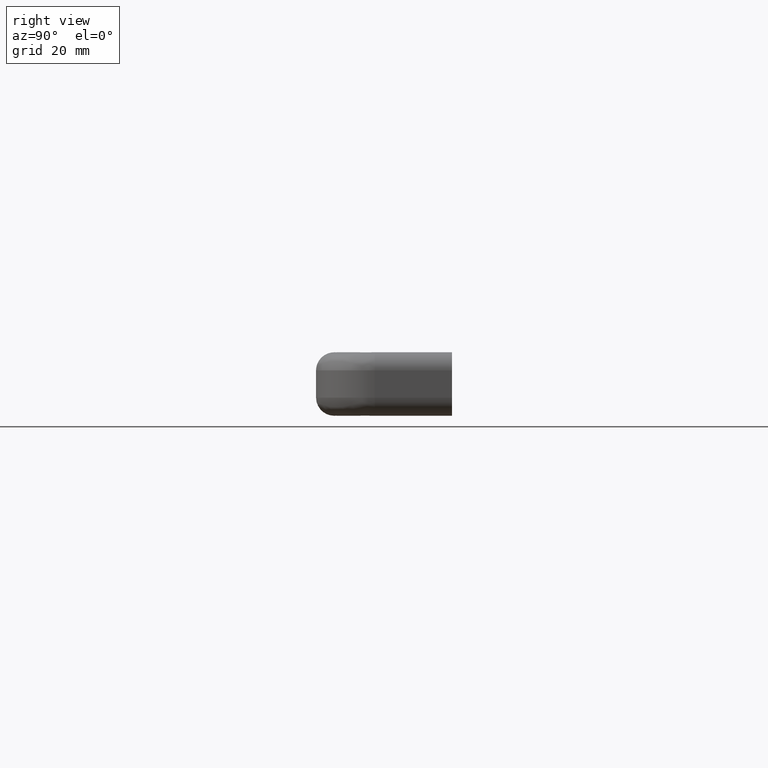
[diagram: clean part render]
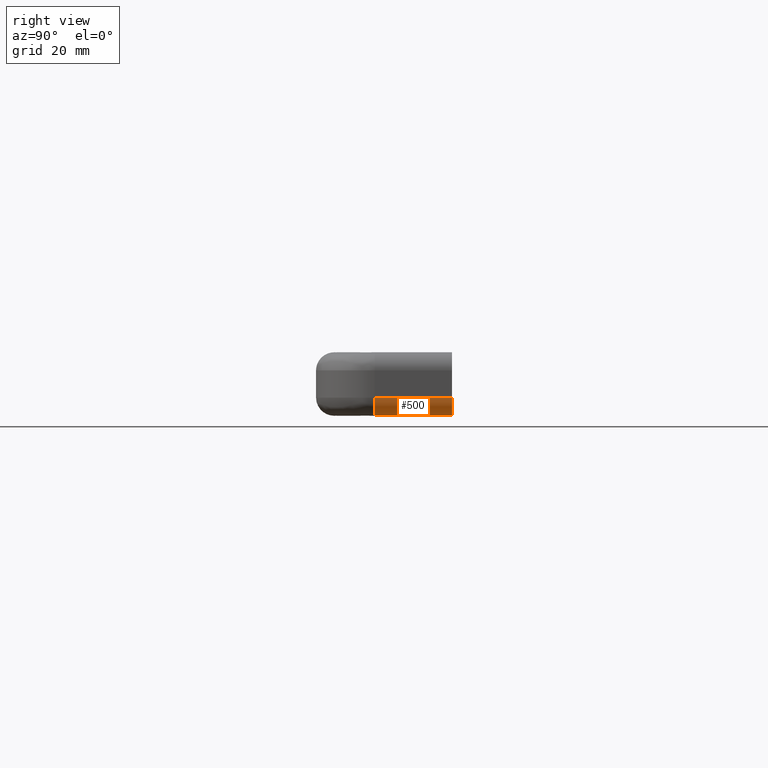
[diagram: same view with one face highlighted and labeled with its STEP entity id]
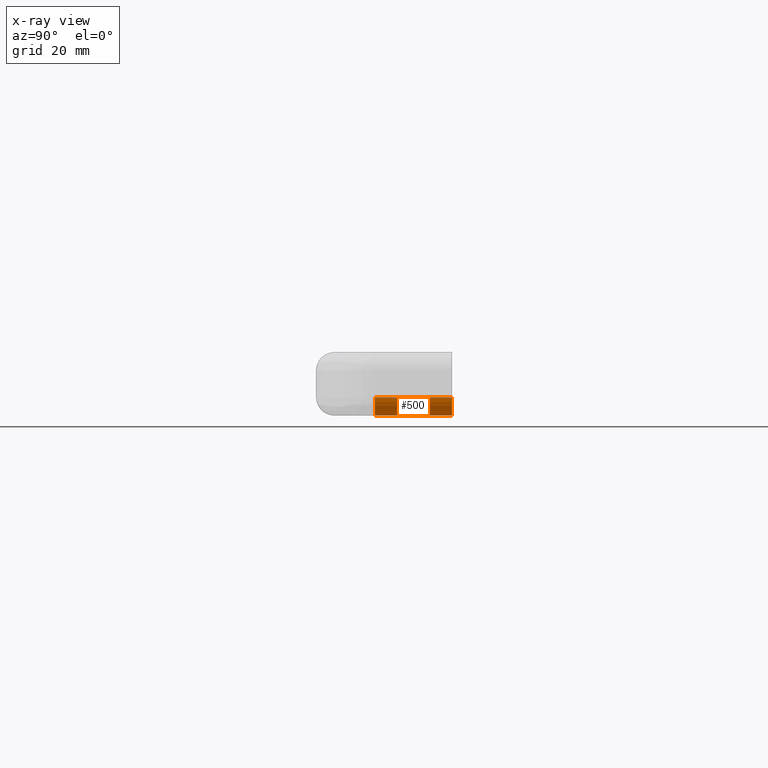
[diagram: x-ray of the same camera — body ghosted, the highlighted face saturated]
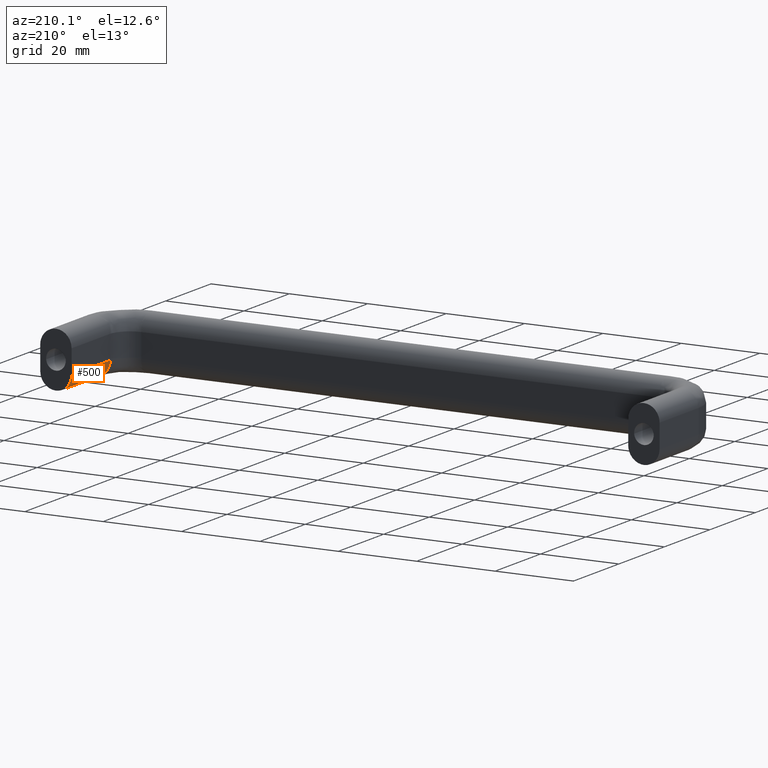
[diagram: same view with one face highlighted and labeled with its STEP entity id]
A machine part, right view. The second image highlights one B-rep face of the part: STEP entity #500.
The next image is the same camera in x-ray: the body ghosted, the highlighted face saturated — about 0% of this face is hidden behind the body in this view.
A second angle (auxiliary view) of the same face is appended — the face is thin or edge-on in the first view.
In plain terms, the highlighted face is a freeform B-spline surface patch.
Its self-contained STEP definition (entity closure, byte-faithful):
#432=CARTESIAN_POINT('',(146.001370700097790,-17.425000000000001,-2.895292206768502));
#433=CARTESIAN_POINT('',(146.001370700097790,0.435625000000002,-2.895292206768502));
#434=CARTESIAN_POINT('',(145.891031708628390,-17.424999999999997,-7.108968291371596));
#435=CARTESIAN_POINT('',(145.891031708628390,0.435625000000002,-7.108968291371596));
#436=CARTESIAN_POINT('',(150.104707793231510,-17.425000000000001,-6.998629299902234));
#437=CARTESIAN_POINT('',(150.104707793231510,0.435625000000002,-6.998629299902234));
#438=CARTESIAN_POINT('',(154.318383877834610,-17.424999999999997,-6.888290308432900));
#439=CARTESIAN_POINT('',(154.318383877834610,0.435625000000002,-6.888290308432900));
#440=CARTESIAN_POINT('',(153.987669334932490,-17.425000000000001,-2.686163617088653));
#441=CARTESIAN_POINT('',(153.987669334932490,0.435625000000002,-2.686163617088653));
#449=(BOUNDED_SURFACE()B_SPLINE_SURFACE(1,2,((#432,#434,#436,#438,#440),(#433,#435,#437,#439,#441)),.UNSPECIFIED.,.F.,.F.,.U.)B_SPLINE_SURFACE_WITH_KNOTS((2,2),(3,2,3),(0.0,17.860624999999999),(0.0,6.874142495469411,13.748284990938821),.UNSPECIFIED.)GEOMETRIC_REPRESENTATION_ITEM()RATIONAL_B_SPLINE_SURFACE(((1.0,0.688354575693754,1.0,0.688354575693754,1.0),(1.0,0.688354575693754,1.0,0.688354575693754,1.0)))REPRESENTATION_ITEM('')SURFACE());
#450=CARTESIAN_POINT('',(154.0,0.0,-3.0));
#451=VERTEX_POINT('',#450);
#452=CARTESIAN_POINT('',(146.0,0.0,-3.0));
#453=VERTEX_POINT('',#452);
#454=CARTESIAN_POINT('',(154.0,0.0,-3.0));
#455=CARTESIAN_POINT('',(153.999999999999970,0.0,-6.999999999999999));
#456=CARTESIAN_POINT('',(150.0,0.0,-7.0));
#457=CARTESIAN_POINT('',(146.000000000000090,0.0,-6.999999999999999));
#458=CARTESIAN_POINT('',(146.0,0.0,-3.0));
#466=(BOUNDED_CURVE()B_SPLINE_CURVE(2,(#454,#455,#456,#457,#458),.UNSPECIFIED.,.F.,.U.)B_SPLINE_CURVE_WITH_KNOTS((3,2,3),(0.0,0.500000000000000,1.0),.UNSPECIFIED.)CURVE()GEOMETRIC_REPRESENTATION_ITEM()RATIONAL_B_SPLINE_CURVE((1.0,0.707106781186548,1.0,0.707106781186548,1.0))REPRESENTATION_ITEM(''));
#467=EDGE_CURVE('',#451,#453,#466,.T.);
#468=ORIENTED_EDGE('',*,*,#467,.F.);
#469=CARTESIAN_POINT('',(154.0,-17.0,-3.0));
#470=VERTEX_POINT('',#469);
#471=CARTESIAN_POINT('',(154.0,-17.0,-3.0));
#472=CARTESIAN_POINT('',(154.0,0.0,-3.0));
#473=QUASI_UNIFORM_CURVE('',1,(#471,#472),.UNSPECIFIED.,.F.,.U.);
#474=EDGE_CURVE('',#470,#451,#473,.T.);
#475=ORIENTED_EDGE('',*,*,#474,.F.);
#476=CARTESIAN_POINT('',(146.0,-17.0,-3.0));
#477=VERTEX_POINT('',#476);
#478=CARTESIAN_POINT('',(154.0,-17.0,-3.0));
#479=CARTESIAN_POINT('',(153.999999999999970,-17.000000000000004,-6.999999999999999));
#480=CARTESIAN_POINT('',(150.0,-17.0,-7.0));
#481=CARTESIAN_POINT('',(146.000000000000090,-17.000000000000004,-6.999999999999999));
#482=CARTESIAN_POINT('',(146.0,-17.0,-3.0));
#490=(BOUNDED_CURVE()B_SPLINE_CURVE(2,(#478,#479,#480,#481,#482),.UNSPECIFIED.,.F.,.U.)B_SPLINE_CURVE_WITH_KNOTS((3,2,3),(0.0,0.500000000000000,1.0),.UNSPECIFIED.)CURVE()GEOMETRIC_REPRESENTATION_ITEM()RATIONAL_B_SPLINE_CURVE((1.0,0.707106781186548,1.0,0.707106781186548,1.0))REPRESENTATION_ITEM(''));
#491=EDGE_CURVE('',#470,#477,#490,.T.);
#492=ORIENTED_EDGE('',*,*,#491,.T.);
#493=CARTESIAN_POINT('',(146.0,-17.0,-3.0));
#494=CARTESIAN_POINT('',(146.0,0.0,-3.0));
#495=QUASI_UNIFORM_CURVE('',1,(#493,#494),.UNSPECIFIED.,.F.,.U.);
#496=EDGE_CURVE('',#477,#453,#495,.T.);
#497=ORIENTED_EDGE('',*,*,#496,.T.);
#498=EDGE_LOOP('',(#468,#475,#492,#497));
#499=FACE_OUTER_BOUND('',#498,.T.);
#500=ADVANCED_FACE('',(#499),#449,.T.);